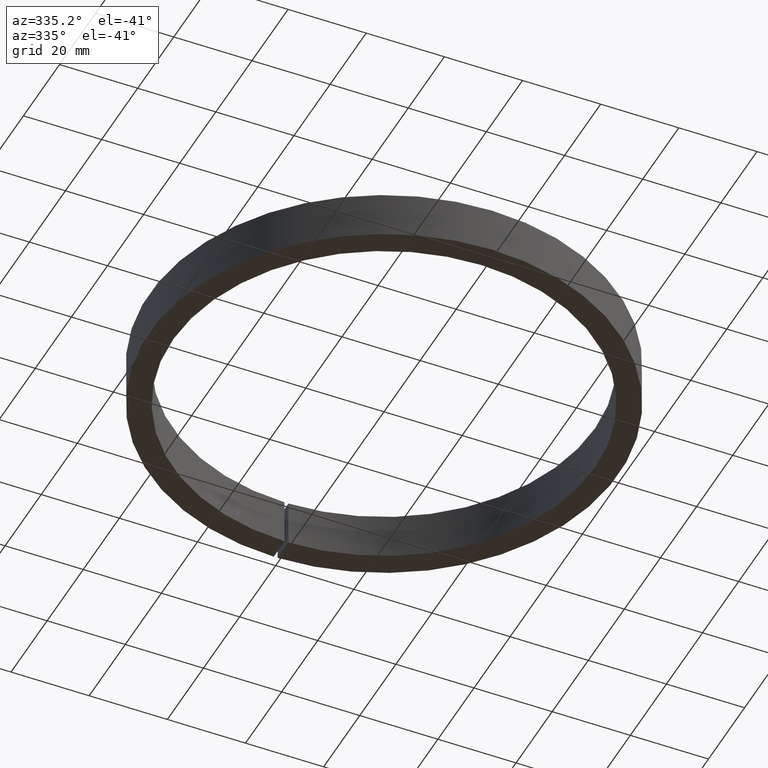
[diagram: clean part render]
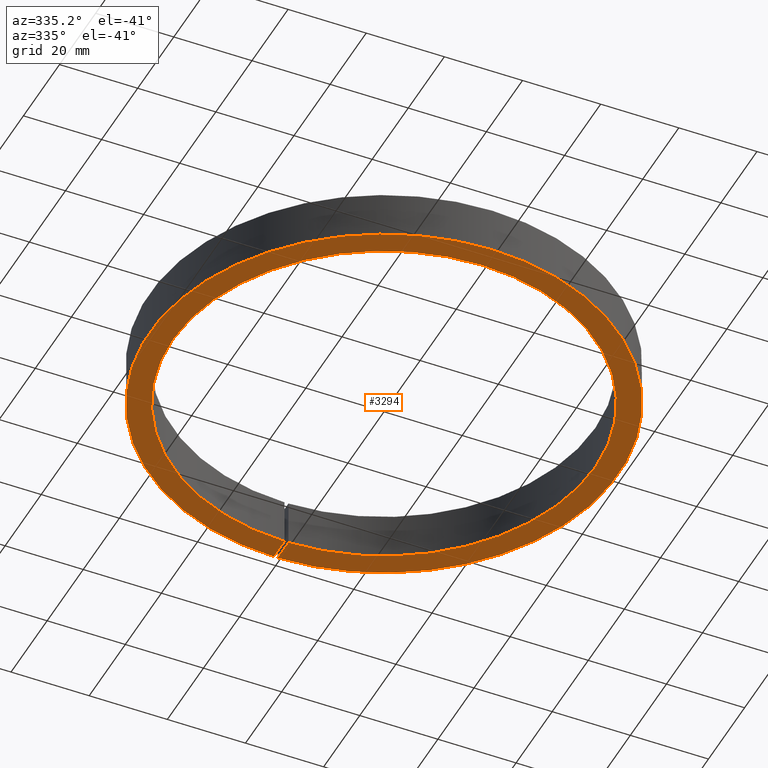
[diagram: same view with one face highlighted and labeled with its STEP entity id]
A machine part, auxiliary view. The second image highlights one B-rep face of the part: STEP entity #3294.
In plain terms, the highlighted planar face has unit normal (0, 0, 1).
Its self-contained STEP definition (entity closure, byte-faithful):
#54 = ORIENTED_EDGE ( 'NONE', *, *, #11359, .F. ) ;
#687 = LINE ( 'NONE', #2458, #9797 ) ;
#808 = DIRECTION ( 'NONE',  ( 0.0000000000000000000, 1.000000000000000000, -0.0000000000000000000 ) ) ;
#1622 = DIRECTION ( 'NONE',  ( 0.0000000000000000000, 1.000000000000000000, -0.0000000000000000000 ) ) ;
#1683 = EDGE_LOOP ( 'NONE', ( #10577, #9321, #5477, #54 ) ) ;
#2021 = CIRCLE ( 'NONE', #6580, 60.00000000000000000 ) ;
#2091 = DIRECTION ( 'NONE',  ( -1.000000000000000000, 0.0000000000000000000, 0.0000000000000000000 ) ) ;
#2286 = VERTEX_POINT ( 'NONE', #6002 ) ;
#2331 = DIRECTION ( 'NONE',  ( 1.000000000000000000, 0.0000000000000000000, -0.0000000000000000000 ) ) ;
#2458 = CARTESIAN_POINT ( 'NONE',  ( -0.5000000000000000000, 0.0000000000000000000, -6.000000000000003600 ) ) ;
#2909 = DIRECTION ( 'NONE',  ( -0.0000000000000000000, -0.0000000000000000000, -1.000000000000000000 ) ) ;
#3153 = DIRECTION ( 'NONE',  ( -0.0000000000000000000, -0.0000000000000000000, -1.000000000000000000 ) ) ;
#3294 = ADVANCED_FACE ( 'NONE', ( #5049 ), #6887, .F. ) ;
#3387 = EDGE_CURVE ( 'NONE', #10502, #2286, #9071, .T. ) ;
#4039 = CARTESIAN_POINT ( 'NONE',  ( 0.0000000000000000000, -54.00000000000000000, -6.000000000000003600 ) ) ;
#5049 = FACE_OUTER_BOUND ( 'NONE', #1683, .T. ) ;
#5267 = CARTESIAN_POINT ( 'NONE',  ( 0.5000000000000000000, 0.0000000000000000000, -6.000000000000003600 ) ) ;
#5477 = ORIENTED_EDGE ( 'NONE', *, *, #11289, .T. ) ;
#5806 = CARTESIAN_POINT ( 'NONE',  ( -0.5000000000000000000, 59.99791663049643400, -6.000000000000003600 ) ) ;
#5912 = DIRECTION ( 'NONE',  ( -1.000000000000000000, 0.0000000000000000000, 0.0000000000000000000 ) ) ;
#6002 = CARTESIAN_POINT ( 'NONE',  ( 0.5000000000000000000, 59.99791663049642700, -6.000000000000003600 ) ) ;
#6012 = VERTEX_POINT ( 'NONE', #5806 ) ;
#6580 = AXIS2_PLACEMENT_3D ( 'NONE', #8492, #3153, #5912 ) ;
#6686 = AXIS2_PLACEMENT_3D ( 'NONE', #4039, #11206, #2331 ) ;
#6887 = PLANE ( 'NONE',  #6686 ) ;
#7344 = CARTESIAN_POINT ( 'NONE',  ( 0.0000000000000000000, 0.0000000000000000000, -6.000000000000002700 ) ) ;
#8041 = AXIS2_PLACEMENT_3D ( 'NONE', #7344, #2909, #2091 ) ;
#8429 = CARTESIAN_POINT ( 'NONE',  ( 0.5000000000000000000, 53.99768513556853800, -6.000000000000003600 ) ) ;
#8492 = CARTESIAN_POINT ( 'NONE',  ( 0.0000000000000000000, 0.0000000000000000000, -6.000000000000003600 ) ) ;
#8687 = EDGE_CURVE ( 'NONE', #10502, #10886, #9692, .T. ) ;
#9071 = LINE ( 'NONE', #5267, #10459 ) ;
#9321 = ORIENTED_EDGE ( 'NONE', *, *, #3387, .T. ) ;
#9389 = CARTESIAN_POINT ( 'NONE',  ( -0.5000000000000000000, 53.99768513556853800, -6.000000000000003600 ) ) ;
#9692 = CIRCLE ( 'NONE', #8041, 54.00000000000000000 ) ;
#9797 = VECTOR ( 'NONE', #1622, 1000.000000000000000 ) ;
#10459 = VECTOR ( 'NONE', #808, 1000.000000000000000 ) ;
#10502 = VERTEX_POINT ( 'NONE', #8429 ) ;
#10577 = ORIENTED_EDGE ( 'NONE', *, *, #8687, .F. ) ;
#10886 = VERTEX_POINT ( 'NONE', #9389 ) ;
#11206 = DIRECTION ( 'NONE',  ( 0.0000000000000000000, 0.0000000000000000000, 1.000000000000000000 ) ) ;
#11289 = EDGE_CURVE ( 'NONE', #2286, #6012, #2021, .T. ) ;
#11359 = EDGE_CURVE ( 'NONE', #10886, #6012, #687, .T. ) ;